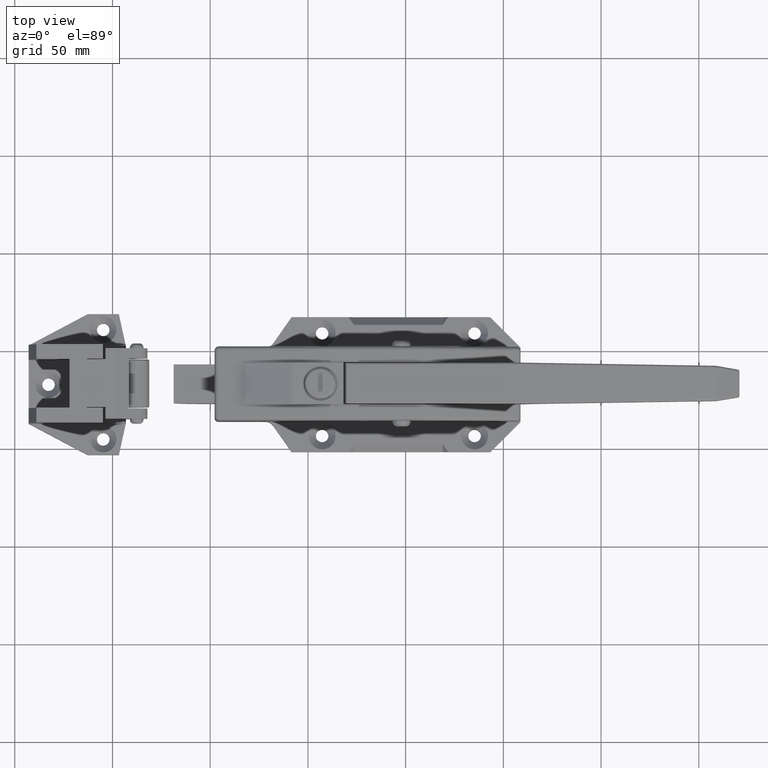
[diagram: clean part render]
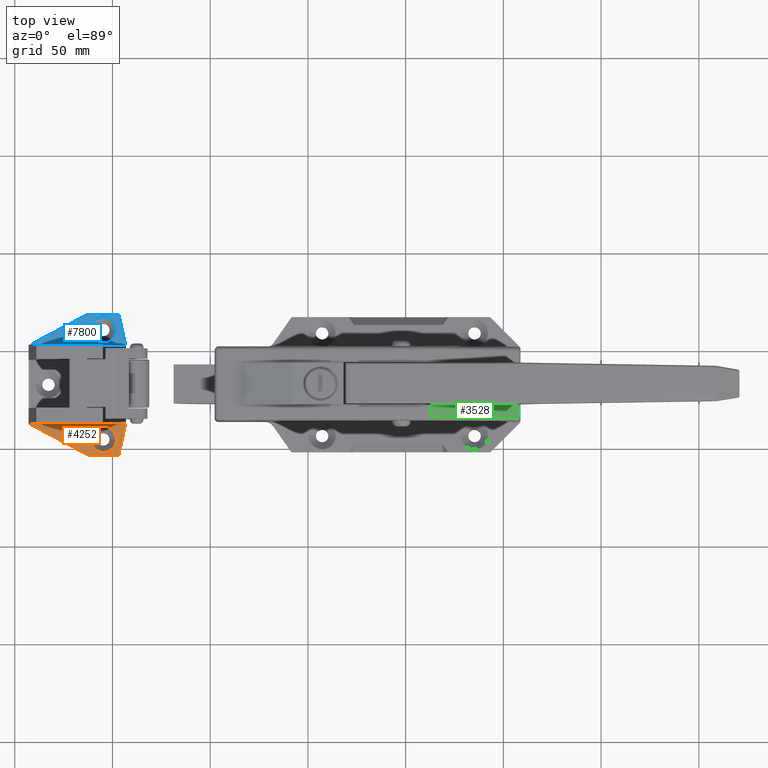
[diagram: same view with three faces highlighted in distinct colors, each labeled with its STEP entity id]
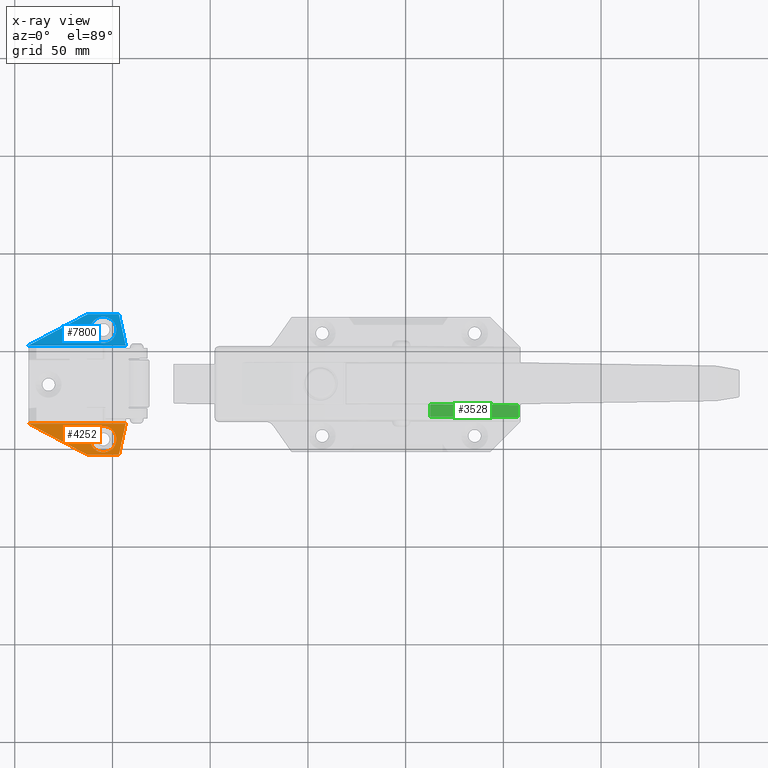
[diagram: x-ray of the same camera — body ghosted, the three highlighted faces saturated]
A machine part, top view with three faces highlighted in distinct colors.
The next image is the same camera in x-ray (body ghosted, the three faces saturated) — at least one of them is partly hidden behind the body in this view.
Their STEP definitions:

[orange] entity #4252 — the highlighted planar face has unit normal (0, 0, -1).
#350 = ORIENTED_EDGE ( 'NONE', *, *, #1945, .F. ) ;
#659 = VERTEX_POINT ( 'NONE', #6680 ) ;
#904 = CARTESIAN_POINT ( 'NONE',  ( 44.92000000000001600, -28.00000000000000000, 9.999999999999786800 ) ) ;
#933 = CARTESIAN_POINT ( 'NONE',  ( 31.48000000000000800, -28.00000000000000000, 9.999999999999786800 ) ) ;
#943 = CIRCLE ( 'NONE', #6610, 6.720000000000004200 ) ;
#1092 = ORIENTED_EDGE ( 'NONE', *, *, #7599, .T. ) ;
#1284 = DIRECTION ( 'NONE',  ( 1.000000000000000000, 0.0000000000000000000, 0.0000000000000000000 ) ) ;
#1422 = CARTESIAN_POINT ( 'NONE',  ( 38.20000000000001000, -28.00000000000000000, 9.999999999999786800 ) ) ;
#1540 = VECTOR ( 'NONE', #4689, 1000.000000000000100 ) ;
#1615 = DIRECTION ( 'NONE',  ( 1.000000000000000000, 0.0000000000000000000, 0.0000000000000000000 ) ) ;
#1790 = DIRECTION ( 'NONE',  ( -0.0000000000000000000, -0.0000000000000000000, 1.000000000000000000 ) ) ;
#1945 = EDGE_CURVE ( 'NONE', #3277, #6755, #943, .T. ) ;
#2097 = CARTESIAN_POINT ( 'NONE',  ( 46.20000000000001700, -36.00000000000000000, 9.999999999999786800 ) ) ;
#2145 = DIRECTION ( 'NONE',  ( 0.8836455305437100900, -0.4681565724734888500, 0.0000000000000000000 ) ) ;
#2306 = DIRECTION ( 'NONE',  ( -0.0000000000000000000, -0.0000000000000000000, 1.000000000000000000 ) ) ;
#2315 = CARTESIAN_POINT ( 'NONE',  ( 38.20000000000001000, -28.00000000000000000, 9.999999999999786800 ) ) ;
#2610 = VERTEX_POINT ( 'NONE', #3207 ) ;
#2818 = LINE ( 'NONE', #6781, #4102 ) ;
#2896 = CARTESIAN_POINT ( 'NONE',  ( 0.0000000000000000000, -20.00000000000000000, 9.999999999999786800 ) ) ;
#3207 = CARTESIAN_POINT ( 'NONE',  ( 0.0000000000000000000, -20.00000000000000000, 9.999999999999786800 ) ) ;
#3277 = VERTEX_POINT ( 'NONE', #904 ) ;
#3356 = CIRCLE ( 'NONE', #7565, 6.720000000000004200 ) ;
#3546 = EDGE_LOOP ( 'NONE', ( #350, #8242 ) ) ;
#3668 = ORIENTED_EDGE ( 'NONE', *, *, #8648, .T. ) ;
#3706 = LINE ( 'NONE', #2097, #1540 ) ;
#4102 = VECTOR ( 'NONE', #8156, 1000.000000000000000 ) ;
#4162 = EDGE_CURVE ( 'NONE', #6755, #3277, #3356, .T. ) ;
#4252 = ADVANCED_FACE ( 'NONE', ( #7218, #5672 ), #8423, .F. ) ;
#4689 = DIRECTION ( 'NONE',  ( 0.2136968788054328700, 0.9769000173962615300, 0.0000000000000000000 ) ) ;
#4823 = EDGE_LOOP ( 'NONE', ( #3668, #1092, #5924, #8576 ) ) ;
#5266 = DIRECTION ( 'NONE',  ( -1.000000000000000000, 0.0000000000000000000, 0.0000000000000000000 ) ) ;
#5333 = CARTESIAN_POINT ( 'NONE',  ( 49.70000000000002400, -20.00000000000000000, 9.999999999999786800 ) ) ;
#5353 = EDGE_CURVE ( 'NONE', #2610, #6836, #6853, .T. ) ;
#5592 = AXIS2_PLACEMENT_3D ( 'NONE', #8539, #8413, #8386 ) ;
#5672 = FACE_OUTER_BOUND ( 'NONE', #4823, .T. ) ;
#5801 = CARTESIAN_POINT ( 'NONE',  ( 46.20000000000001700, -36.00000000000000000, 9.999999999999786800 ) ) ;
#5845 = EDGE_CURVE ( 'NONE', #6836, #6280, #2818, .T. ) ;
#5924 = ORIENTED_EDGE ( 'NONE', *, *, #5353, .T. ) ;
#6095 = VECTOR ( 'NONE', #2145, 1000.000000000000200 ) ;
#6280 = VERTEX_POINT ( 'NONE', #5801 ) ;
#6610 = AXIS2_PLACEMENT_3D ( 'NONE', #1422, #1790, #1284 ) ;
#6680 = CARTESIAN_POINT ( 'NONE',  ( 49.70000000000002400, -20.00000000000000000, 9.999999999999786800 ) ) ;
#6755 = VERTEX_POINT ( 'NONE', #933 ) ;
#6781 = CARTESIAN_POINT ( 'NONE',  ( 30.20000000000000300, -36.00000000000000000, 9.999999999999786800 ) ) ;
#6815 = LINE ( 'NONE', #5333, #6838 ) ;
#6836 = VERTEX_POINT ( 'NONE', #7316 ) ;
#6838 = VECTOR ( 'NONE', #5266, 1000.000000000000000 ) ;
#6853 = LINE ( 'NONE', #2896, #6095 ) ;
#7218 = FACE_BOUND ( 'NONE', #3546, .T. ) ;
#7316 = CARTESIAN_POINT ( 'NONE',  ( 30.20000000000000300, -36.00000000000000000, 9.999999999999786800 ) ) ;
#7565 = AXIS2_PLACEMENT_3D ( 'NONE', #2315, #2306, #1615 ) ;
#7599 = EDGE_CURVE ( 'NONE', #659, #2610, #6815, .T. ) ;
#8156 = DIRECTION ( 'NONE',  ( 1.000000000000000000, 0.0000000000000000000, 0.0000000000000000000 ) ) ;
#8242 = ORIENTED_EDGE ( 'NONE', *, *, #4162, .F. ) ;
#8386 = DIRECTION ( 'NONE',  ( -1.000000000000000000, 0.0000000000000000000, -0.0000000000000000000 ) ) ;
#8413 = DIRECTION ( 'NONE',  ( 0.0000000000000000000, 0.0000000000000000000, -1.000000000000000000 ) ) ;
#8423 = PLANE ( 'NONE',  #5592 ) ;
#8539 = CARTESIAN_POINT ( 'NONE',  ( 44.53827893175071800, 43.59643916913945100, 9.999999999999786800 ) ) ;
#8576 = ORIENTED_EDGE ( 'NONE', *, *, #5845, .T. ) ;
#8648 = EDGE_CURVE ( 'NONE', #6280, #659, #3706, .T. ) ;

[blue] entity #7800 — the highlighted planar face has unit normal (0, 0, -1).
#72 = CARTESIAN_POINT ( 'NONE',  ( 46.20000000000001700, 36.00000000000000000, 9.999999999999786800 ) ) ;
#303 = FACE_BOUND ( 'NONE', #7594, .T. ) ;
#461 = CIRCLE ( 'NONE', #8023, 6.720000000000004200 ) ;
#520 = EDGE_CURVE ( 'NONE', #2216, #3409, #2794, .T. ) ;
#619 = DIRECTION ( 'NONE',  ( -0.0000000000000000000, -0.0000000000000000000, 1.000000000000000000 ) ) ;
#627 = DIRECTION ( 'NONE',  ( 1.000000000000000000, 0.0000000000000000000, 0.0000000000000000000 ) ) ;
#654 = CARTESIAN_POINT ( 'NONE',  ( 38.20000000000001000, 28.00000000000000000, 9.999999999999786800 ) ) ;
#756 = LINE ( 'NONE', #8456, #7818 ) ;
#970 = ORIENTED_EDGE ( 'NONE', *, *, #4856, .F. ) ;
#1186 = VECTOR ( 'NONE', #8636, 1000.000000000000100 ) ;
#1425 = CARTESIAN_POINT ( 'NONE',  ( 31.48000000000000800, 28.00000000000000000, 9.999999999999786800 ) ) ;
#2216 = VERTEX_POINT ( 'NONE', #72 ) ;
#2240 = CARTESIAN_POINT ( 'NONE',  ( 30.20000000000000300, 36.00000000000000000, 9.999999999999786800 ) ) ;
#2251 = VERTEX_POINT ( 'NONE', #8276 ) ;
#2338 = CARTESIAN_POINT ( 'NONE',  ( 0.0000000000000000000, 20.00000000000000000, 9.999999999999786800 ) ) ;
#2697 = ORIENTED_EDGE ( 'NONE', *, *, #7154, .T. ) ;
#2794 = LINE ( 'NONE', #5423, #5528 ) ;
#3409 = VERTEX_POINT ( 'NONE', #2240 ) ;
#3461 = VERTEX_POINT ( 'NONE', #2338 ) ;
#3660 = LINE ( 'NONE', #6456, #5661 ) ;
#4755 = AXIS2_PLACEMENT_3D ( 'NONE', #5000, #4980, #4969 ) ;
#4856 = EDGE_CURVE ( 'NONE', #8418, #8210, #7986, .T. ) ;
#4969 = DIRECTION ( 'NONE',  ( 1.000000000000000000, 0.0000000000000000000, 0.0000000000000000000 ) ) ;
#4980 = DIRECTION ( 'NONE',  ( -0.0000000000000000000, -0.0000000000000000000, 1.000000000000000000 ) ) ;
#5000 = CARTESIAN_POINT ( 'NONE',  ( 38.20000000000001000, 28.00000000000000000, 9.999999999999786800 ) ) ;
#5003 = EDGE_CURVE ( 'NONE', #2251, #2216, #6471, .T. ) ;
#5423 = CARTESIAN_POINT ( 'NONE',  ( 30.20000000000000300, 36.00000000000000000, 9.999999999999786800 ) ) ;
#5528 = VECTOR ( 'NONE', #6664, 1000.000000000000000 ) ;
#5661 = VECTOR ( 'NONE', #6426, 1000.000000000000200 ) ;
#5695 = ORIENTED_EDGE ( 'NONE', *, *, #5003, .T. ) ;
#6426 = DIRECTION ( 'NONE',  ( -0.8836455305437100900, -0.4681565724734888500, -0.0000000000000000000 ) ) ;
#6456 = CARTESIAN_POINT ( 'NONE',  ( 0.0000000000000000000, 20.00000000000000000, 9.999999999999786800 ) ) ;
#6471 = LINE ( 'NONE', #8647, #1186 ) ;
#6604 = EDGE_LOOP ( 'NONE', ( #7253, #5695, #6785, #2697 ) ) ;
#6664 = DIRECTION ( 'NONE',  ( -1.000000000000000000, -0.0000000000000000000, -0.0000000000000000000 ) ) ;
#6785 = ORIENTED_EDGE ( 'NONE', *, *, #520, .T. ) ;
#6793 = EDGE_CURVE ( 'NONE', #8210, #8418, #461, .T. ) ;
#7011 = ORIENTED_EDGE ( 'NONE', *, *, #6793, .F. ) ;
#7020 = FACE_OUTER_BOUND ( 'NONE', #6604, .T. ) ;
#7058 = CARTESIAN_POINT ( 'NONE',  ( 44.53827893175071800, 43.59643916913945100, 9.999999999999786800 ) ) ;
#7154 = EDGE_CURVE ( 'NONE', #3409, #3461, #3660, .T. ) ;
#7253 = ORIENTED_EDGE ( 'NONE', *, *, #8446, .F. ) ;
#7525 = DIRECTION ( 'NONE',  ( -1.000000000000000000, 0.0000000000000000000, -0.0000000000000000000 ) ) ;
#7542 = DIRECTION ( 'NONE',  ( 0.0000000000000000000, 0.0000000000000000000, -1.000000000000000000 ) ) ;
#7594 = EDGE_LOOP ( 'NONE', ( #970, #7011 ) ) ;
#7693 = PLANE ( 'NONE',  #8555 ) ;
#7800 = ADVANCED_FACE ( 'NONE', ( #303, #7020 ), #7693, .F. ) ;
#7818 = VECTOR ( 'NONE', #8444, 1000.000000000000000 ) ;
#7986 = CIRCLE ( 'NONE', #4755, 6.720000000000004200 ) ;
#8023 = AXIS2_PLACEMENT_3D ( 'NONE', #654, #619, #627 ) ;
#8210 = VERTEX_POINT ( 'NONE', #1425 ) ;
#8276 = CARTESIAN_POINT ( 'NONE',  ( 49.70000000000002400, 20.00000000000000000, 9.999999999999786800 ) ) ;
#8418 = VERTEX_POINT ( 'NONE', #8488 ) ;
#8444 = DIRECTION ( 'NONE',  ( -1.000000000000000000, 0.0000000000000000000, 0.0000000000000000000 ) ) ;
#8446 = EDGE_CURVE ( 'NONE', #2251, #3461, #756, .T. ) ;
#8456 = CARTESIAN_POINT ( 'NONE',  ( 49.70000000000002400, 20.00000000000000000, 9.999999999999786800 ) ) ;
#8488 = CARTESIAN_POINT ( 'NONE',  ( 44.92000000000001600, 28.00000000000000000, 9.999999999999786800 ) ) ;
#8555 = AXIS2_PLACEMENT_3D ( 'NONE', #7058, #7542, #7525 ) ;
#8636 = DIRECTION ( 'NONE',  ( -0.2136968788054328700, 0.9769000173962615300, -0.0000000000000000000 ) ) ;
#8647 = CARTESIAN_POINT ( 'NONE',  ( 46.20000000000001700, 36.00000000000000000, 9.999999999999786800 ) ) ;

[green] entity #3528 — the highlighted planar face has unit normal (-0.4008, 0, -0.9162).
#31 = CARTESIAN_POINT ( 'NONE',  ( 77.05163766803940500, -17.00000000000000400, 27.52428352023272900 ) ) ;
#136 = LINE ( 'NONE', #1768, #2724 ) ;
#371 = ORIENTED_EDGE ( 'NONE', *, *, #5701, .T. ) ;
#799 = LINE ( 'NONE', #6165, #2514 ) ;
#1138 = DIRECTION ( 'NONE',  ( -0.0000000000000000000, 1.000000000000000000, -0.0000000000000000000 ) ) ;
#1139 = CARTESIAN_POINT ( 'NONE',  ( 77.05163766803940500, 19.00000000000000000, 27.52428352023272900 ) ) ;
#1768 = CARTESIAN_POINT ( 'NONE',  ( 78.24999999999998600, -10.85000000000000100, 27.00000000000013500 ) ) ;
#2022 = CARTESIAN_POINT ( 'NONE',  ( 77.05163766803940500, -17.00000000000000400, 27.52428352023272900 ) ) ;
#2067 = DIRECTION ( 'NONE',  ( 0.9161573349021892000, 0.0000000000000000000, -0.4008188340197076900 ) ) ;
#2440 = LINE ( 'NONE', #1139, #7579 ) ;
#2470 = PLANE ( 'NONE',  #6967 ) ;
#2483 = DIRECTION ( 'NONE',  ( -0.9161573349021892000, 0.0000000000000000000, 0.4008188340197076900 ) ) ;
#2514 = VECTOR ( 'NONE', #6173, 1000.000000000000000 ) ;
#2724 = VECTOR ( 'NONE', #4069, 1000.000000000000000 ) ;
#2749 = CARTESIAN_POINT ( 'NONE',  ( 32.16640377366425700, -10.85000000000000100, 47.16157334902204900 ) ) ;
#2820 = CARTESIAN_POINT ( 'NONE',  ( 32.16640377366425700, -17.00000000000000400, 47.16157334902204900 ) ) ;
#2944 = EDGE_CURVE ( 'NONE', #7036, #6418, #2440, .T. ) ;
#3050 = VECTOR ( 'NONE', #2067, 1000.000000000000000 ) ;
#3340 = EDGE_CURVE ( 'NONE', #5443, #7036, #5066, .T. ) ;
#3528 = ADVANCED_FACE ( 'NONE', ( #7122 ), #2470, .F. ) ;
#3718 = EDGE_LOOP ( 'NONE', ( #8342, #371, #6857, #5545 ) ) ;
#4069 = DIRECTION ( 'NONE',  ( -0.9161573349021892000, 0.0000000000000000000, 0.4008188340197076900 ) ) ;
#4599 = EDGE_CURVE ( 'NONE', #8006, #5443, #799, .T. ) ;
#4647 = CARTESIAN_POINT ( 'NONE',  ( 77.05163766803940500, -10.85000000000000100, 27.52428352023272900 ) ) ;
#5066 = LINE ( 'NONE', #2022, #3050 ) ;
#5443 = VERTEX_POINT ( 'NONE', #2820 ) ;
#5545 = ORIENTED_EDGE ( 'NONE', *, *, #3340, .T. ) ;
#5701 = EDGE_CURVE ( 'NONE', #6418, #8006, #136, .T. ) ;
#5926 = DIRECTION ( 'NONE',  ( -0.4008188340197076900, 0.0000000000000000000, -0.9161573349021892000 ) ) ;
#5953 = CARTESIAN_POINT ( 'NONE',  ( 78.24999999999998600, 19.00000000000000000, 27.00000000000013500 ) ) ;
#6165 = CARTESIAN_POINT ( 'NONE',  ( 32.16640377366425700, 19.00000000000000000, 47.16157334902204900 ) ) ;
#6173 = DIRECTION ( 'NONE',  ( 0.0000000000000000000, -1.000000000000000000, 0.0000000000000000000 ) ) ;
#6418 = VERTEX_POINT ( 'NONE', #4647 ) ;
#6857 = ORIENTED_EDGE ( 'NONE', *, *, #4599, .T. ) ;
#6967 = AXIS2_PLACEMENT_3D ( 'NONE', #5953, #5926, #2483 ) ;
#7036 = VERTEX_POINT ( 'NONE', #31 ) ;
#7122 = FACE_OUTER_BOUND ( 'NONE', #3718, .T. ) ;
#7579 = VECTOR ( 'NONE', #1138, 1000.000000000000000 ) ;
#8006 = VERTEX_POINT ( 'NONE', #2749 ) ;
#8342 = ORIENTED_EDGE ( 'NONE', *, *, #2944, .T. ) ;